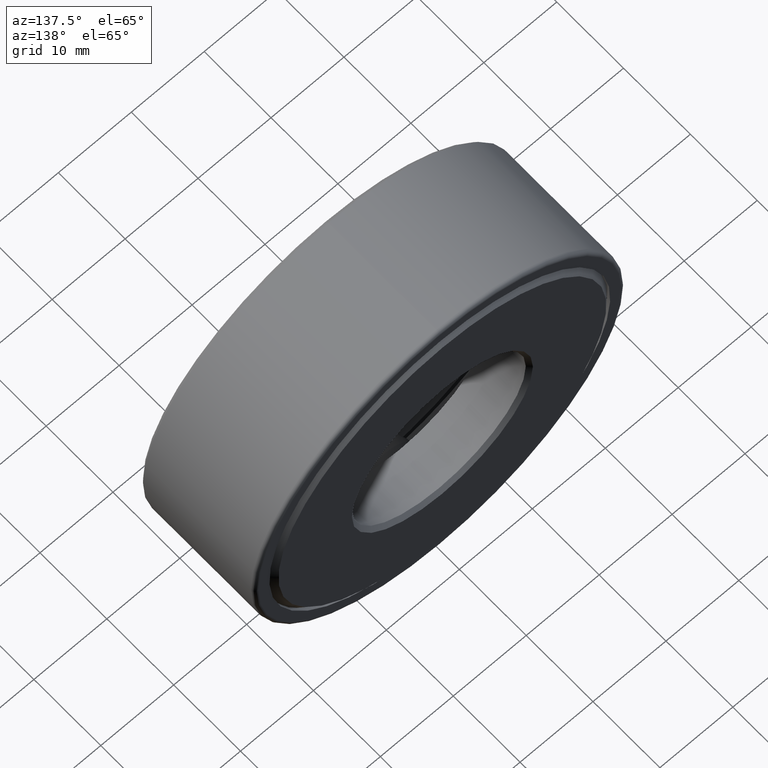
[diagram: clean part render]
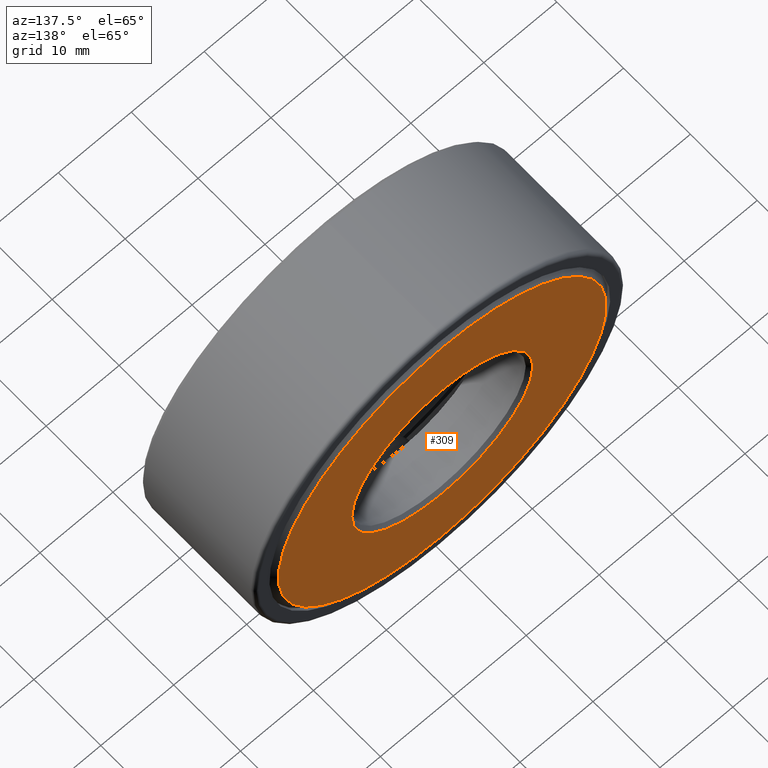
[diagram: same view with one face highlighted and labeled with its STEP entity id]
A machine part, auxiliary view. The second image highlights one B-rep face of the part: STEP entity #309.
In plain terms, the highlighted planar face has unit normal (-0, 1, 0).
Its self-contained STEP definition (entity closure, byte-faithful):
#41 = CARTESIAN_POINT ( 'NONE',  ( 0.0000000000000000000, 0.6875000000000000000, 0.0000000000000000000 ) ) ;
#61 = CIRCLE ( 'NONE', #173, 0.8849999999999996800 ) ;
#93 = AXIS2_PLACEMENT_3D ( 'NONE', #201, #283, #239 ) ;
#119 = ORIENTED_EDGE ( 'NONE', *, *, #448, .F. ) ;
#133 = DIRECTION ( 'NONE',  ( -0.0000000000000000000, 1.000000000000000000, 0.0000000000000000000 ) ) ;
#164 = FACE_OUTER_BOUND ( 'NONE', #273, .T. ) ;
#173 = AXIS2_PLACEMENT_3D ( 'NONE', #41, #318, #177 ) ;
#177 = DIRECTION ( 'NONE',  ( 0.0000000000000000000, 0.0000000000000000000, 1.000000000000000000 ) ) ;
#191 = VERTEX_POINT ( 'NONE', #429 ) ;
#192 = CIRCLE ( 'NONE', #93, 0.4887500000000000700 ) ;
#201 = CARTESIAN_POINT ( 'NONE',  ( 0.0000000000000000000, 0.6875000000000000000, 0.0000000000000000000 ) ) ;
#202 = ORIENTED_EDGE ( 'NONE', *, *, #326, .T. ) ;
#223 = DIRECTION ( 'NONE',  ( 0.0000000000000000000, 0.0000000000000000000, 1.000000000000000000 ) ) ;
#239 = DIRECTION ( 'NONE',  ( 0.0000000000000000000, 0.0000000000000000000, 1.000000000000000000 ) ) ;
#262 = AXIS2_PLACEMENT_3D ( 'NONE', #266, #133, #223 ) ;
#266 = CARTESIAN_POINT ( 'NONE',  ( 0.0000000000000000000, 0.6875000000000000000, 0.0000000000000000000 ) ) ;
#273 = EDGE_LOOP ( 'NONE', ( #202 ) ) ;
#283 = DIRECTION ( 'NONE',  ( -0.0000000000000000000, 1.000000000000000000, -0.0000000000000000000 ) ) ;
#305 = VERTEX_POINT ( 'NONE', #436 ) ;
#309 = ADVANCED_FACE ( 'NONE', ( #164, #583 ), #362, .T. ) ;
#318 = DIRECTION ( 'NONE',  ( -0.0000000000000000000, 1.000000000000000000, -0.0000000000000000000 ) ) ;
#326 = EDGE_CURVE ( 'NONE', #305, #305, #61, .T. ) ;
#362 = PLANE ( 'NONE',  #262 ) ;
#429 = CARTESIAN_POINT ( 'NONE',  ( 0.0000000000000000000, 0.6875000000000000000, 0.4887500000000000700 ) ) ;
#436 = CARTESIAN_POINT ( 'NONE',  ( 0.0000000000000000000, 0.6875000000000000000, 0.8849999999999996800 ) ) ;
#448 = EDGE_CURVE ( 'NONE', #191, #191, #192, .T. ) ;
#544 = EDGE_LOOP ( 'NONE', ( #119 ) ) ;
#583 = FACE_BOUND ( 'NONE', #544, .T. ) ;